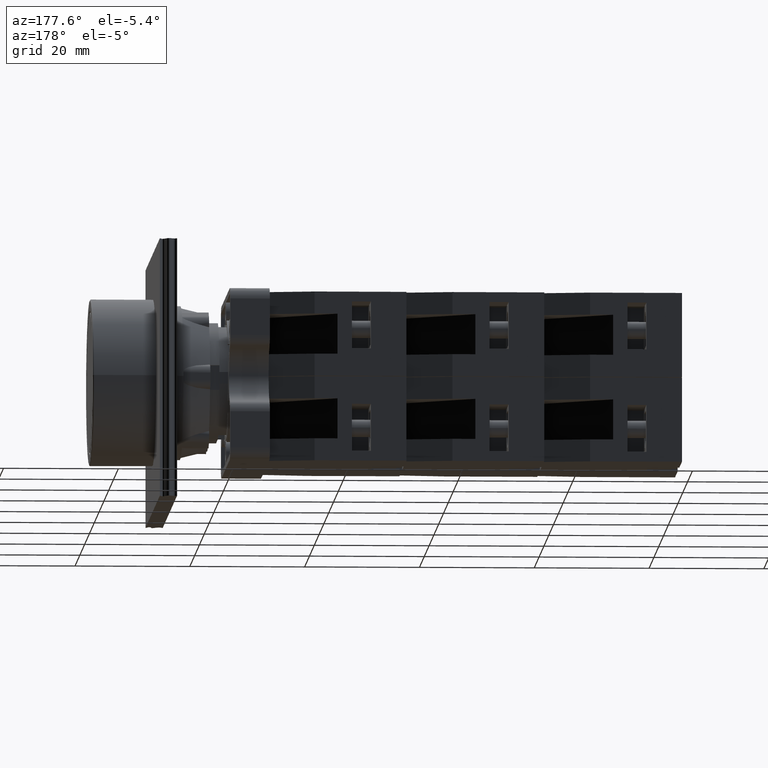
[diagram: clean part render]
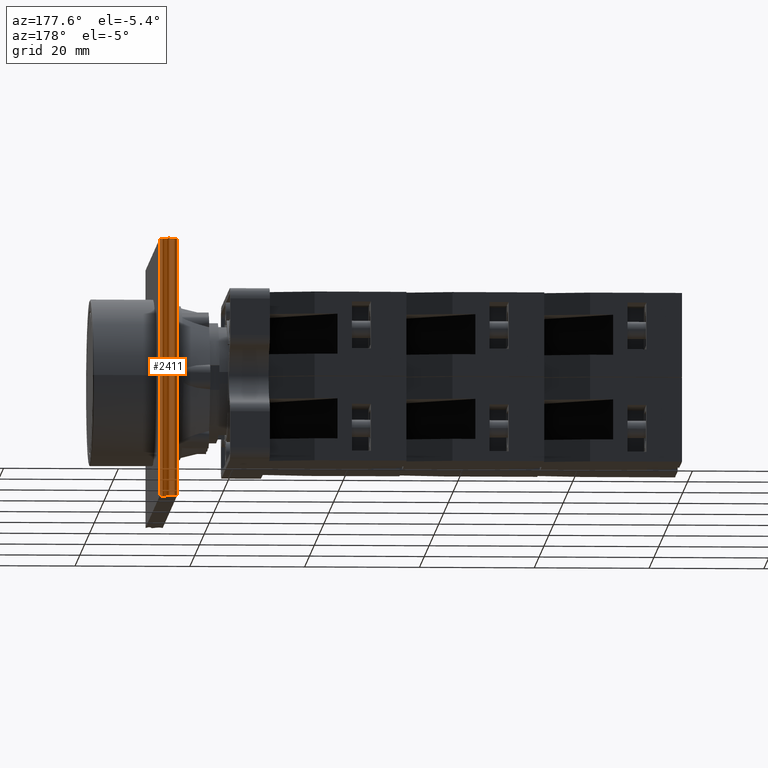
[diagram: same view with one face highlighted and labeled with its STEP entity id]
A machine part, auxiliary view. The second image highlights one B-rep face of the part: STEP entity #2411.
In plain terms, the highlighted face is a freeform B-spline surface patch.
Its self-contained STEP definition (entity closure, byte-faithful):
#2362=CARTESIAN_POINT('',(-12.704183619849175,-2.725398273954286,0.0));
#2363=CARTESIAN_POINT('',(-13.683988853155304,-7.243589001706696,0.0));
#2364=CARTESIAN_POINT('',(-13.964099132856656,2.032835085571791,0.0));
#2365=CARTESIAN_POINT('',(-14.667084388146536,-4.961008747338168,0.0));
#2366=CARTESIAN_POINT('',(-15.704183619849177,-2.725398273954286,0.0));
#2367=CARTESIAN_POINT('',(-12.704183619849175,-2.725398273954286,45.0));
#2368=CARTESIAN_POINT('',(-13.683988853155304,-7.243589001706696,45.0));
#2369=CARTESIAN_POINT('',(-13.964099132856656,2.032835085571791,45.0));
#2370=CARTESIAN_POINT('',(-14.667084388146536,-4.961008747338168,45.0));
#2371=CARTESIAN_POINT('',(-15.704183619849177,-2.725398273954286,45.0));
#2372=B_SPLINE_SURFACE_WITH_KNOTS('',4,1,((#2362,#2367),(#2363,#2368),(#2364,#2369),(#2365,#2370),(#2366,#2371)),.UNSPECIFIED.,.F.,.F.,.U.,(5,5),(2,2),(0.0,1.0),(0.0,4.500000000000000),.UNSPECIFIED.);
#2373=CARTESIAN_POINT('',(-15.704183619849179,-2.725398273954287,45.0));
#2374=VERTEX_POINT('',#2373);
#2375=CARTESIAN_POINT('',(-12.704183619849179,-2.725398273954287,45.0));
#2376=VERTEX_POINT('',#2375);
#2377=CARTESIAN_POINT('',(-15.704183619849177,-2.725398273954286,45.0));
#2378=CARTESIAN_POINT('',(-14.667084388146536,-4.961008747338168,45.0));
#2379=CARTESIAN_POINT('',(-13.964099132856656,2.032835085571791,45.0));
#2380=CARTESIAN_POINT('',(-13.683988853155304,-7.243589001706696,45.0));
#2381=CARTESIAN_POINT('',(-12.704183619849175,-2.725398273954286,45.0));
#2382=QUASI_UNIFORM_CURVE('',4,(#2377,#2378,#2379,#2380,#2381),.UNSPECIFIED.,.F.,.U.);
#2383=EDGE_CURVE('',#2374,#2376,#2382,.T.);
#2384=ORIENTED_EDGE('',*,*,#2383,.T.);
#2385=CARTESIAN_POINT('',(-12.704183619849179,-2.725398273954287,0.0));
#2386=VERTEX_POINT('',#2385);
#2387=CARTESIAN_POINT('',(-12.704183619849179,-2.725398273954287,0.0));
#2388=DIRECTION('',(0.0,0.0,1.0));
#2389=VECTOR('',#2388,45.0);
#2390=LINE('',#2387,#2389);
#2391=EDGE_CURVE('',#2386,#2376,#2390,.T.);
#2392=ORIENTED_EDGE('',*,*,#2391,.F.);
#2393=CARTESIAN_POINT('',(-15.704183619849179,-2.725398273954287,0.0));
#2394=VERTEX_POINT('',#2393);
#2395=CARTESIAN_POINT('',(-12.704183619849175,-2.725398273954286,0.0));
#2396=CARTESIAN_POINT('',(-13.683988853155304,-7.243589001706696,0.0));
#2397=CARTESIAN_POINT('',(-13.964099132856656,2.032835085571791,0.0));
#2398=CARTESIAN_POINT('',(-14.667084388146536,-4.961008747338168,0.0));
#2399=CARTESIAN_POINT('',(-15.704183619849177,-2.725398273954286,0.0));
#2400=QUASI_UNIFORM_CURVE('',4,(#2395,#2396,#2397,#2398,#2399),.UNSPECIFIED.,.F.,.U.);
#2401=EDGE_CURVE('',#2386,#2394,#2400,.T.);
#2402=ORIENTED_EDGE('',*,*,#2401,.T.);
#2403=CARTESIAN_POINT('',(-15.704183619849179,-2.725398273954287,0.0));
#2404=DIRECTION('',(0.0,0.0,1.0));
#2405=VECTOR('',#2404,45.0);
#2406=LINE('',#2403,#2405);
#2407=EDGE_CURVE('',#2394,#2374,#2406,.T.);
#2408=ORIENTED_EDGE('',*,*,#2407,.T.);
#2409=EDGE_LOOP('',(#2384,#2392,#2402,#2408));
#2410=FACE_OUTER_BOUND('',#2409,.T.);
#2411=ADVANCED_FACE('',(#2410),#2372,.T.);